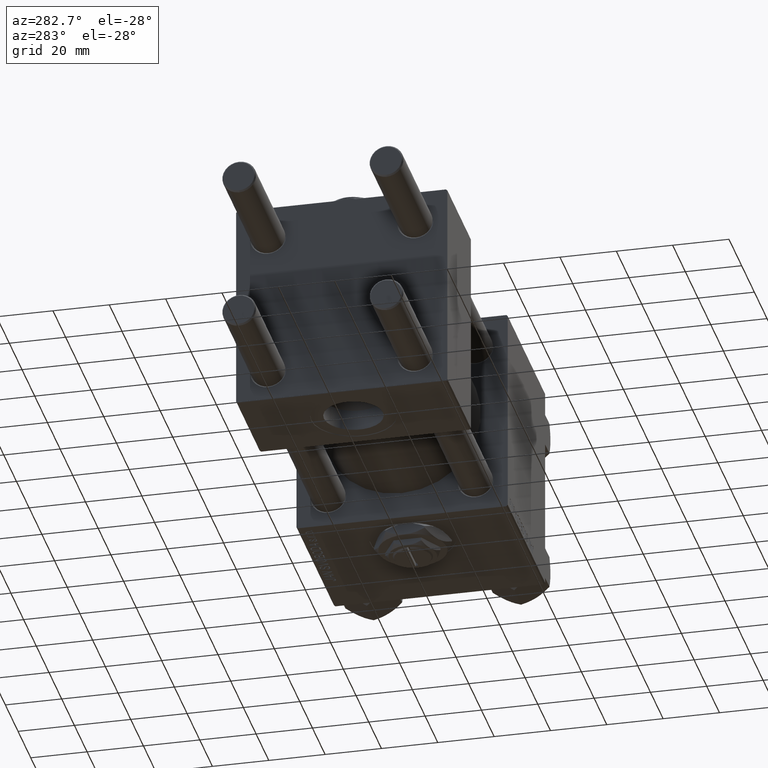
[diagram: clean part render]
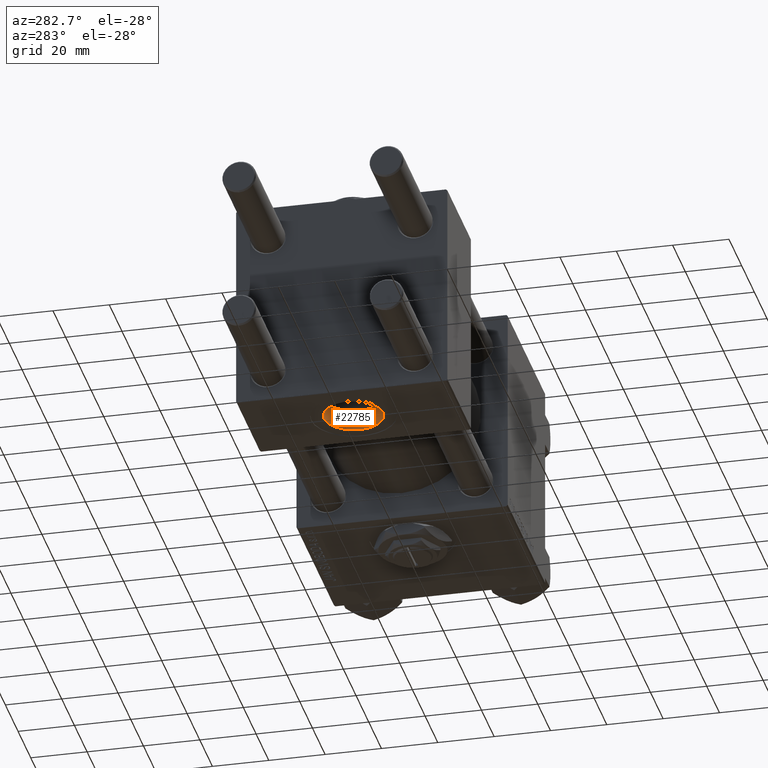
[diagram: same view with one face highlighted and labeled with its STEP entity id]
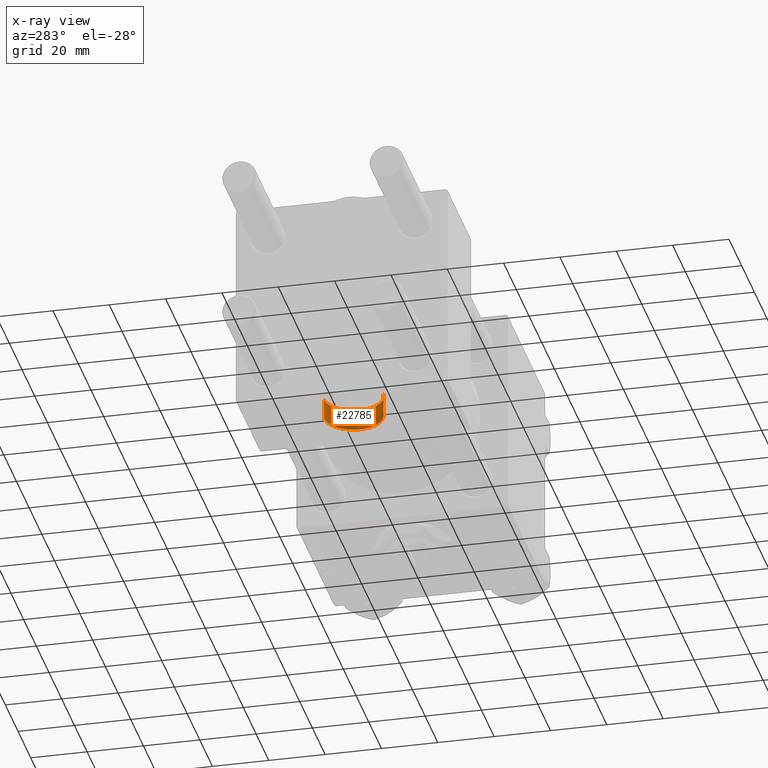
[diagram: x-ray of the same camera — body ghosted, the highlighted face saturated]
A machine part, auxiliary view. The second image highlights one B-rep face of the part: STEP entity #22785.
The next image is the same camera in x-ray: the body ghosted, the highlighted face saturated — about 0% of this face is hidden behind the body in this view.
In plain terms, the highlighted cylindrical surface (edge-blend (fillet) strip) has radius 10.48 mm, axis along (-0, -0, -1).
Its self-contained STEP definition (entity closure, byte-faithful):
#4519 = AXIS2_PLACEMENT_3D ( 'NONE', #11781, #27768, #7861 ) ;
#6043 = ORIENTED_EDGE ( 'NONE', *, *, #42332, .T. ) ;
#6722 = LINE ( 'NONE', #22963, #39950 ) ;
#7068 = CARTESIAN_POINT ( 'NONE',  ( 18.50000000000000000, -10.47999999999999687, -29.84000000000001407 ) ) ;
#7480 = ORIENTED_EDGE ( 'NONE', *, *, #51358, .T. ) ;
#7861 = DIRECTION ( 'NONE',  ( 0.000000000000000000, 1.000000000000000000, -3.310540984688563108E-16 ) ) ;
#8841 = DIRECTION ( 'NONE',  ( 0.000000000000000000, -1.734723475976806848E-16, -1.000000000000000000 ) ) ;
#10762 = VERTEX_POINT ( 'NONE', #22213 ) ;
#11345 = DIRECTION ( 'NONE',  ( 0.000000000000000000, 1.000000000000000000, -3.310540984688563108E-16 ) ) ;
#11781 = CARTESIAN_POINT ( 'NONE',  ( 18.50000000000000000, 3.328668975575022701E-15, -29.84000000000001762 ) ) ;
#11856 = DIRECTION ( 'NONE',  ( -0.000000000000000000, -1.734723475976806848E-16, -1.000000000000000000 ) ) ;
#15976 = VECTOR ( 'NONE', #31492, 1000.000000000000000 ) ;
#17535 = CARTESIAN_POINT ( 'NONE',  ( 18.50000000000000000, -10.47999999999999865, -37.30000000000000426 ) ) ;
#18924 = CARTESIAN_POINT ( 'NONE',  ( 18.50000000000000000, 10.48000000000000398, -29.84000000000002117 ) ) ;
#19857 = DIRECTION ( 'NONE',  ( 0.000000000000000000, 1.000000000000000000, 0.000000000000000000 ) ) ;
#21225 = VERTEX_POINT ( 'NONE', #7068 ) ;
#22213 = CARTESIAN_POINT ( 'NONE',  ( 18.50000000000000000, 10.48000000000000220, -37.30000000000000426 ) ) ;
#22785 = ADVANCED_FACE ( 'NONE', ( #31248 ), #39619, .F. ) ;
#22865 = LINE ( 'NONE', #38835, #15976 ) ;
#22963 = CARTESIAN_POINT ( 'NONE',  ( 18.50000000000000000, -10.47999999999999687, -26.70000000000000639 ) ) ;
#23164 = VERTEX_POINT ( 'NONE', #17535 ) ;
#23915 = CARTESIAN_POINT ( 'NONE',  ( 18.50000000000000000, 3.873372147031742495E-15, -26.70000000000000995 ) ) ;
#27107 = CIRCLE ( 'NONE', #4519, 10.48000000000000043 ) ;
#27193 = EDGE_LOOP ( 'NONE', ( #43470, #38554, #7480, #6043 ) ) ;
#27768 = DIRECTION ( 'NONE',  ( -0.000000000000000000, 1.734723475976806601E-16, 1.000000000000000000 ) ) ;
#28489 = CARTESIAN_POINT ( 'NONE',  ( 18.50000000000000000, 2.034565262496326581E-15, -37.30000000000000426 ) ) ;
#29830 = EDGE_CURVE ( 'NONE', #21225, #51376, #27107, .T. ) ;
#31248 = FACE_OUTER_BOUND ( 'NONE', #27193, .T. ) ;
#31492 = DIRECTION ( 'NONE',  ( -0.000000000000000000, -1.734723475976806848E-16, -1.000000000000000000 ) ) ;
#38554 = ORIENTED_EDGE ( 'NONE', *, *, #29830, .T. ) ;
#38835 = CARTESIAN_POINT ( 'NONE',  ( 18.50000000000000000, 10.48000000000000398, -26.70000000000001350 ) ) ;
#39619 = CYLINDRICAL_SURFACE ( 'NONE', #46044, 10.48000000000000043 ) ;
#39950 = VECTOR ( 'NONE', #50948, 1000.000000000000000 ) ;
#42332 = EDGE_CURVE ( 'NONE', #10762, #23164, #44131, .T. ) ;
#43290 = EDGE_CURVE ( 'NONE', #21225, #23164, #6722, .T. ) ;
#43470 = ORIENTED_EDGE ( 'NONE', *, *, #43290, .F. ) ;
#44131 = CIRCLE ( 'NONE', #51633, 10.48000000000000043 ) ;
#46044 = AXIS2_PLACEMENT_3D ( 'NONE', #23915, #11856, #11345 ) ;
#50948 = DIRECTION ( 'NONE',  ( -0.000000000000000000, -1.734723475976806848E-16, -1.000000000000000000 ) ) ;
#51358 = EDGE_CURVE ( 'NONE', #51376, #10762, #22865, .T. ) ;
#51376 = VERTEX_POINT ( 'NONE', #18924 ) ;
#51633 = AXIS2_PLACEMENT_3D ( 'NONE', #28489, #8841, #19857 ) ;